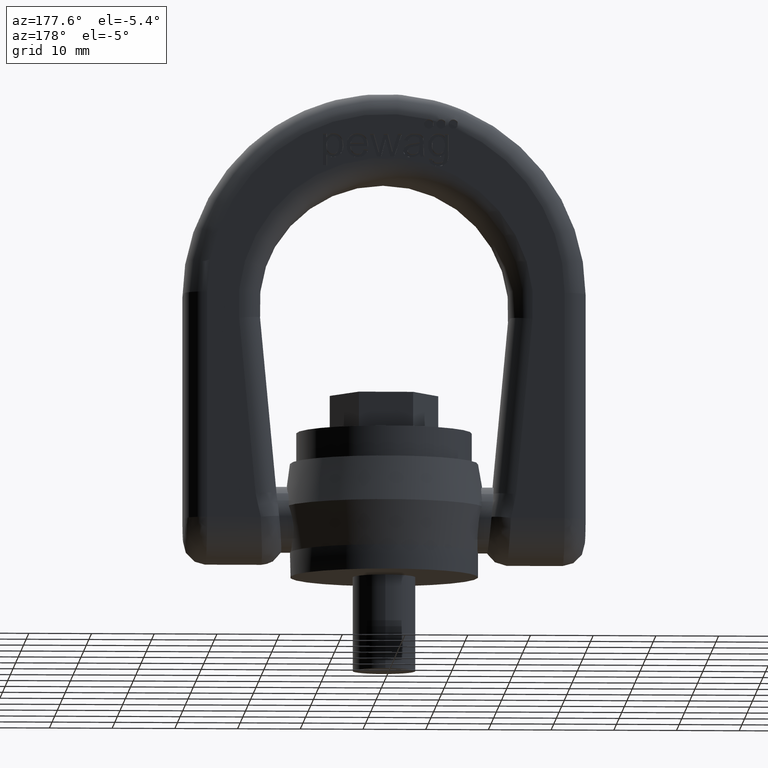
[diagram: clean part render]
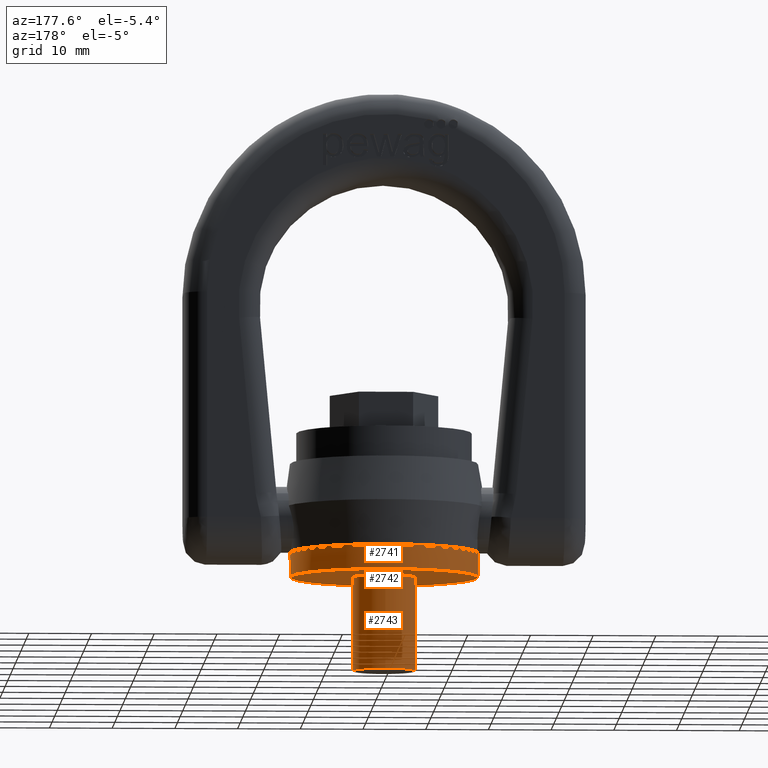
[diagram: same view with one multi-face feature highlighted, each face labeled with its STEP entity id]
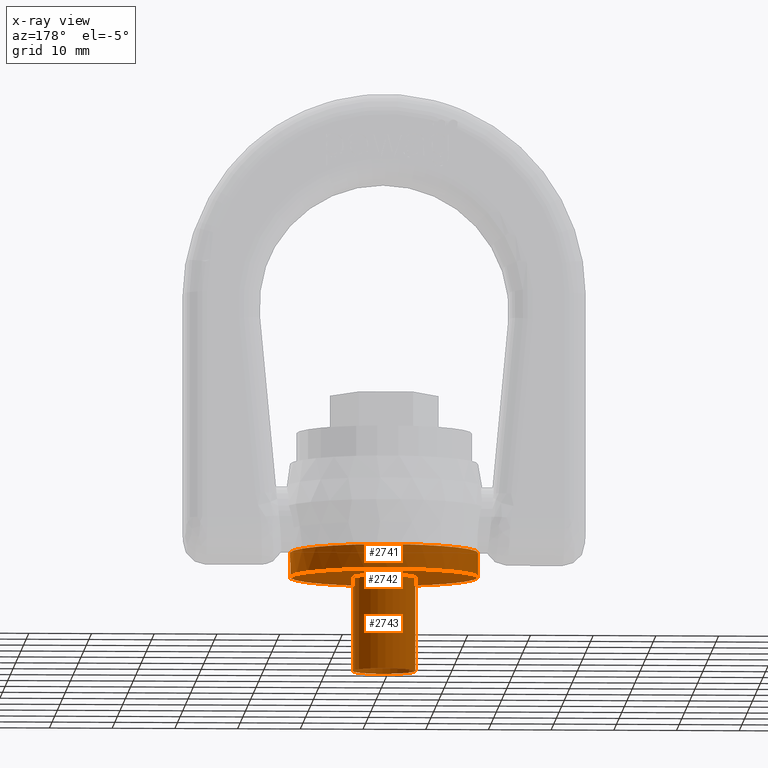
[diagram: x-ray of the same camera — body ghosted, the whole feature saturated]
A machine part, auxiliary view. The highlighted faces form ONE feature: a stepped (counterbored) hole: 2 coaxial cylindrical walls of radii 5 -> 15 mm joined by 1 annular planar shoulder face(s). The faces share edges in the B-rep.
The next image is the same camera in x-ray: the body ghosted and the whole hole feature saturated, so the bore chain is visible through the body.
Their STEP definitions:
[1] entity #2741 (Cylinder):
#2741=ADVANCED_FACE('',(#3003,#3004),#2981,.T.);
#2981=CYLINDRICAL_SURFACE('',#5618,15.);
#3003=FACE_BOUND('',#3063,.T.);
#3004=FACE_BOUND('',#3064,.T.);
#3063=EDGE_LOOP('',(#3337));
#3064=EDGE_LOOP('',(#3338));
#3337=ORIENTED_EDGE('',*,*,#4951,.T.);
#3338=ORIENTED_EDGE('',*,*,#4952,.F.);
#4549=VERTEX_POINT('',#6616);
#4550=VERTEX_POINT('',#6618);
#4951=EDGE_CURVE('',#4549,#4549,#5557,.T.);
#4952=EDGE_CURVE('',#4550,#4550,#5558,.T.);
#5557=CIRCLE('',#5616,15.);
#5558=CIRCLE('',#5617,15.);
#5616=AXIS2_PLACEMENT_3D('',#6615,#5826,#5827);
#5617=AXIS2_PLACEMENT_3D('',#6617,#5828,#5829);
#5618=AXIS2_PLACEMENT_3D('',#6619,#5830,#5831);
#5826=DIRECTION('',(0.,0.,-1.));
#5827=DIRECTION('',(-1.,0.,0.));
#5828=DIRECTION('',(0.,0.,-1.));
#5829=DIRECTION('',(-6.12323399573677E-17,1.,0.));
#5830=DIRECTION('',(0.,0.,-1.));
#5831=DIRECTION('',(-1.,0.,0.));
#6615=CARTESIAN_POINT('',(0.,0.,3.9));
#6616=CARTESIAN_POINT('',(-15.,0.,3.9));
#6617=CARTESIAN_POINT('',(0.,0.,0.));
#6618=CARTESIAN_POINT('',(-9.18485099360515E-16,15.,0.));
#6619=CARTESIAN_POINT('',(0.,0.,3.9));
[2] entity #2743 (Cylinder):
#2743=ADVANCED_FACE('',(#3007,#3008),#2982,.T.);
#2982=CYLINDRICAL_SURFACE('',#5622,5.);
#3007=FACE_BOUND('',#3067,.T.);
#3008=FACE_BOUND('',#3068,.T.);
#3067=EDGE_LOOP('',(#3341));
#3068=EDGE_LOOP('',(#3342));
#3341=ORIENTED_EDGE('',*,*,#4954,.F.);
#3342=ORIENTED_EDGE('',*,*,#4953,.T.);
#4551=VERTEX_POINT('',#6621);
#4552=VERTEX_POINT('',#6624);
#4953=EDGE_CURVE('',#4551,#4551,#5559,.T.);
#4954=EDGE_CURVE('',#4552,#4552,#5560,.T.);
#5559=CIRCLE('',#5619,5.);
#5560=CIRCLE('',#5621,5.);
#5619=AXIS2_PLACEMENT_3D('',#6620,#5832,#5833);
#5621=AXIS2_PLACEMENT_3D('',#6623,#5836,#5837);
#5622=AXIS2_PLACEMENT_3D('',#6625,#5838,#5839);
#5832=DIRECTION('',(0.,0.,-1.));
#5833=DIRECTION('',(-6.12323399573677E-17,1.,0.));
#5836=DIRECTION('',(0.,0.,-1.));
#5837=DIRECTION('',(-6.12323399573677E-17,1.,0.));
#5838=DIRECTION('',(0.,0.,1.));
#5839=DIRECTION('',(1.,0.,0.));
#6620=CARTESIAN_POINT('',(0.,0.,0.));
#6621=CARTESIAN_POINT('',(-3.06161699786838E-16,5.,0.));
#6623=CARTESIAN_POINT('',(0.,0.,-15.));
#6624=CARTESIAN_POINT('',(-3.06161699786838E-16,5.,-15.));
#6625=CARTESIAN_POINT('',(0.,0.,-15.));
[3] entity #2742 (Plane):
#2627=PLANE('',#5620);
#2742=ADVANCED_FACE('',(#3005,#3006),#2627,.T.);
#3005=FACE_BOUND('',#3065,.T.);
#3006=FACE_BOUND('',#3066,.T.);
#3065=EDGE_LOOP('',(#3339));
#3066=EDGE_LOOP('',(#3340));
#3339=ORIENTED_EDGE('',*,*,#4953,.F.);
#3340=ORIENTED_EDGE('',*,*,#4952,.T.);
#4550=VERTEX_POINT('',#6618);
#4551=VERTEX_POINT('',#6621);
#4952=EDGE_CURVE('',#4550,#4550,#5558,.T.);
#4953=EDGE_CURVE('',#4551,#4551,#5559,.T.);
#5558=CIRCLE('',#5617,15.);
#5559=CIRCLE('',#5619,5.);
#5617=AXIS2_PLACEMENT_3D('',#6617,#5828,#5829);
#5619=AXIS2_PLACEMENT_3D('',#6620,#5832,#5833);
#5620=AXIS2_PLACEMENT_3D('',#6622,#5834,#5835);
#5828=DIRECTION('',(0.,0.,-1.));
#5829=DIRECTION('',(-6.12323399573677E-17,1.,0.));
#5832=DIRECTION('',(0.,0.,-1.));
#5833=DIRECTION('',(-6.12323399573677E-17,1.,0.));
#5834=DIRECTION('',(0.,0.,-1.));
#5835=DIRECTION('',(-1.,0.,0.));
#6617=CARTESIAN_POINT('',(0.,0.,0.));
#6618=CARTESIAN_POINT('',(-9.18485099360515E-16,15.,0.));
#6620=CARTESIAN_POINT('',(0.,0.,0.));
#6621=CARTESIAN_POINT('',(-3.06161699786838E-16,5.,0.));
#6622=CARTESIAN_POINT('',(0.,0.,0.));